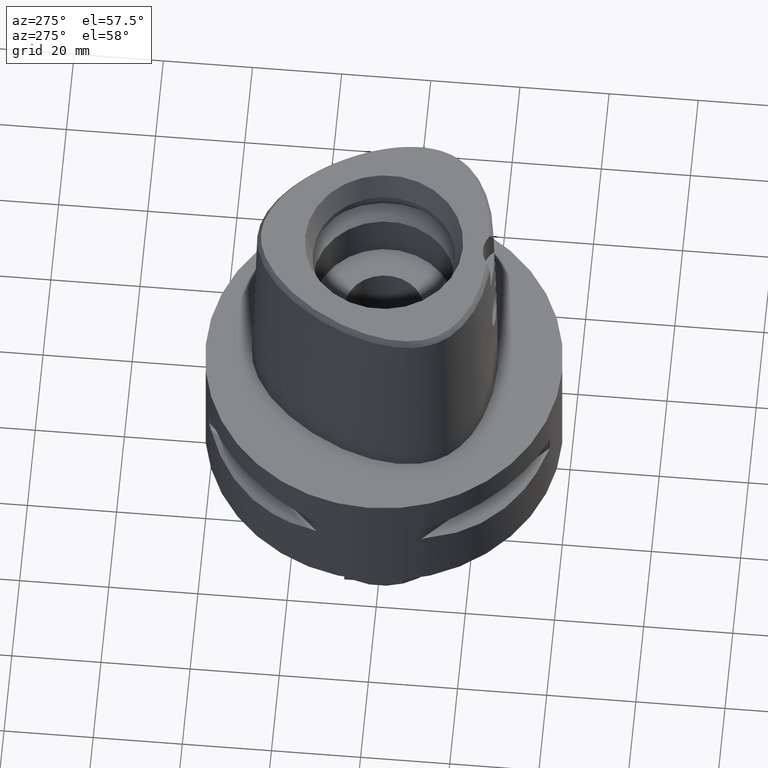
[diagram: clean part render]
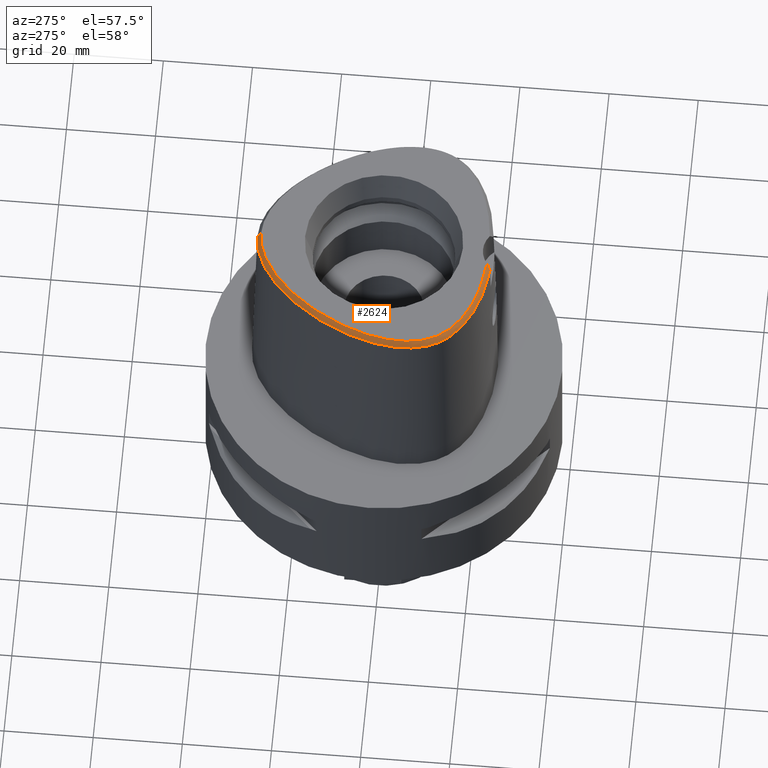
[diagram: same view with one face highlighted and labeled with its STEP entity id]
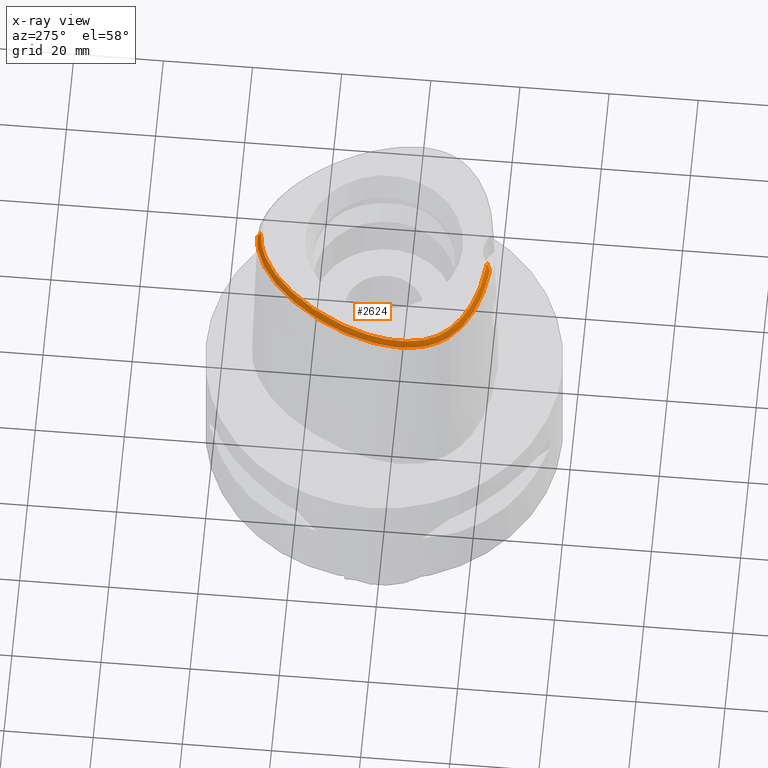
[diagram: x-ray of the same camera — body ghosted, the highlighted face saturated]
A machine part, auxiliary view. The second image highlights one B-rep face of the part: STEP entity #2624.
The next image is the same camera in x-ray: the body ghosted, the highlighted face saturated — about 0% of this face is hidden behind the body in this view.
In plain terms, the highlighted face is a freeform B-spline surface patch.
Its self-contained STEP definition (entity closure, byte-faithful):
#26=CARTESIAN_POINT('',(-3.652529789307E0,-2.343985019792E1,4.8E1));
#27=CARTESIAN_POINT('',(-4.683033247764E0,-2.335834910207E1,4.8E1));
#28=CARTESIAN_POINT('',(-6.614114338805E0,-2.313448817038E1,4.8E1));
#29=CARTESIAN_POINT('',(-9.091589543181E0,-2.268593643629E1,4.8E1));
#30=CARTESIAN_POINT('',(-1.125800466939E1,-2.215770641310E1,4.8E1));
#31=CARTESIAN_POINT('',(-1.318638232014E1,-2.156413028968E1,4.8E1));
#32=CARTESIAN_POINT('',(-1.494119385979E1,-2.090533890742E1,4.8E1));
#33=CARTESIAN_POINT('',(-1.655328899141E1,-2.017968159277E1,4.8E1));
#34=CARTESIAN_POINT('',(-1.804034606676E1,-1.938437686365E1,4.8E1));
#35=CARTESIAN_POINT('',(-1.942354923526E1,-1.850638182548E1,4.8E1));
#36=CARTESIAN_POINT('',(-2.069569385226E1,-1.754133399985E1,4.8E1));
#37=CARTESIAN_POINT('',(-2.181162828129E1,-1.651970286822E1,4.8E1));
#38=CARTESIAN_POINT('',(-2.274427705482E1,-1.548278597447E1,4.8E1));
#39=CARTESIAN_POINT('',(-2.351161564888E1,-1.443992534916E1,4.8E1));
#40=CARTESIAN_POINT('',(-2.414574132173E1,-1.336730647601E1,4.8E1));
#41=CARTESIAN_POINT('',(-2.468154195740E1,-1.220772273755E1,4.8E1));
#42=CARTESIAN_POINT('',(-2.513141684958E1,-1.091440090856E1,4.8E1));
#43=CARTESIAN_POINT('',(-2.548239619470E1,-9.464978865071E0,4.8E1));
#44=CARTESIAN_POINT('',(-2.571001381273E1,-7.885560983795E0,4.8E1));
#45=CARTESIAN_POINT('',(-2.580365620828E1,-6.265883000827E0,4.8E1));
#46=CARTESIAN_POINT('',(-2.577352572027E1,-4.587363113512E0,4.8E1));
#47=CARTESIAN_POINT('',(-2.562068738209E1,-2.845374925699E0,4.8E1));
#48=CARTESIAN_POINT('',(-2.534037793943E1,-1.014302064018E0,4.8E1));
#49=CARTESIAN_POINT('',(-2.491899643614E1,9.312019192237E-1,4.8E1));
#50=CARTESIAN_POINT('',(-2.433405341601E1,3.023401649168E0,4.8E1));
#51=CARTESIAN_POINT('',(-2.353422668467E1,5.340762643813E0,4.8E1));
#52=CARTESIAN_POINT('',(-2.245025422384E1,7.943598158671E0,4.8E1));
#53=CARTESIAN_POINT('',(-2.098937664308E1,1.087122875726E1,4.8E1));
#54=CARTESIAN_POINT('',(-1.922052563968E1,1.383551449549E1,4.8E1));
#55=CARTESIAN_POINT('',(-1.743328922660E1,1.638549563944E1,4.8E1));
#56=CARTESIAN_POINT('',(-1.574555524125E1,1.848443047011E1,4.8E1));
#57=CARTESIAN_POINT('',(-1.415912666468E1,2.022430005120E1,4.8E1));
#58=CARTESIAN_POINT('',(-1.266783654778E1,2.167643268687E1,4.8E1));
#59=CARTESIAN_POINT('',(-1.121509082849E1,2.293240612080E1,4.8E1));
#60=CARTESIAN_POINT('',(-9.776350696685E0,2.402712412905E1,4.8E1));
#61=CARTESIAN_POINT('',(-8.343576951507E0,2.497430947640E1,4.8E1));
#62=CARTESIAN_POINT('',(-6.901339016791E0,2.578557359625E1,4.8E1));
#63=CARTESIAN_POINT('',(-5.435659652745E0,2.646295592857E1,4.8E1));
#64=CARTESIAN_POINT('',(-3.973367182154E0,2.698663007164E1,4.8E1));
#65=CARTESIAN_POINT('',(-2.573835271100E0,2.734109602992E1,4.8E1));
#66=CARTESIAN_POINT('',(-1.262923985492E0,2.754019343629E1,4.8E1));
#67=CARTESIAN_POINT('',(-4.148229384912E-1,2.758331912251E1,4.8E1));
#68=CARTESIAN_POINT('',(-2.553408000972E-11,2.758331912251E1,4.8E1));
#193=CARTESIAN_POINT('',(-3.652529789307E0,-2.343985019792E1,4.8E1));
#194=CARTESIAN_POINT('',(-3.751127124787E0,-2.351550531803E1,4.785150214976E1));
#195=CARTESIAN_POINT('',(-3.943346640380E0,-2.367275217380E1,4.754362455543E1));
#196=CARTESIAN_POINT('',(-4.215731333788E0,-2.392519674126E1,4.705213811447E1));
#197=CARTESIAN_POINT('',(-4.388426624360E0,-2.410640623976E1,4.670142492843E1));
#198=CARTESIAN_POINT('',(-4.472216406693E0,-2.420008985674E1,4.652070903171E1));
#203=CARTESIAN_POINT('',(-4.472216406693E0,-2.420008985674E1,4.652070903171E1));
#204=CARTESIAN_POINT('',(-5.475752624121E0,-2.410402551778E1,4.652067972026E1));
#205=CARTESIAN_POINT('',(-7.367945853152E0,-2.385512745882E1,4.652073740084E1));
#206=CARTESIAN_POINT('',(-9.801189647627E0,-2.337841582408E1,4.652070906855E1));
#207=CARTESIAN_POINT('',(-1.194716168123E1,-2.282424239007E1,4.652071623864E1));
#208=CARTESIAN_POINT('',(-1.387976141996E1,-2.220055676247E1,4.652071729952E1));
#209=CARTESIAN_POINT('',(-1.565226031522E1,-2.150597340248E1,4.652072068809E1));
#210=CARTESIAN_POINT('',(-1.728428195586E1,-2.074122314062E1,4.652071574921E1));
#211=CARTESIAN_POINT('',(-1.880172184312E1,-1.989698688031E1,4.652072148063E1));
#212=CARTESIAN_POINT('',(-2.021929755440E1,-1.896014195435E1,4.652071545507E1));
#213=CARTESIAN_POINT('',(-2.152397752612E1,-1.792573388223E1,4.652072136650E1));
#214=CARTESIAN_POINT('',(-2.263733028488E1,-1.685882936475E1,4.652072203367E1));
#215=CARTESIAN_POINT('',(-2.356343081817E1,-1.578520183949E1,4.652071775445E1));
#216=CARTESIAN_POINT('',(-2.433393768759E1,-1.469583444160E1,4.652070707295E1));
#217=CARTESIAN_POINT('',(-2.497650805901E1,-1.356508662274E1,4.652075653086E1));
#218=CARTESIAN_POINT('',(-2.552310937760E1,-1.233451892648E1,4.652071412741E1));
#219=CARTESIAN_POINT('',(-2.597570467057E1,-1.097873426093E1,4.652072032477E1));
#220=CARTESIAN_POINT('',(-2.632817788575E1,-9.455464052275E0,4.652071394859E1));
#221=CARTESIAN_POINT('',(-2.655169373002E1,-7.799223011323E0,4.652072586554E1));
#222=CARTESIAN_POINT('',(-2.663580487711E1,-6.103626089650E0,4.652071799712E1));
#223=CARTESIAN_POINT('',(-2.659117638984E1,-4.359101815483E0,4.652072397153E1));
#224=CARTESIAN_POINT('',(-2.642035020664E1,-2.554853244511E0,4.652071679554E1));
#225=CARTESIAN_POINT('',(-2.611783448654E1,-6.621123540599E-1,
4.652071502558E1));
#226=CARTESIAN_POINT('',(-2.567159640472E1,1.339191969406E0,4.652072034215E1));
#227=CARTESIAN_POINT('',(-2.505282298067E1,3.501888445338E0,4.652070620436E1));
#228=CARTESIAN_POINT('',(-2.421399897532E1,5.884281890609E0,4.652073185797E1));
#229=CARTESIAN_POINT('',(-2.307920660279E1,8.561303526414E0,4.652070231062E1));
#230=CARTESIAN_POINT('',(-2.156622462677E1,1.154143964738E1,4.652072162713E1));
#231=CARTESIAN_POINT('',(-1.977625183469E1,1.450027225463E1,4.652071280298E1));
#232=CARTESIAN_POINT('',(-1.796066789788E1,1.706259855549E1,4.652071568772E1));
#233=CARTESIAN_POINT('',(-1.625963168374E1,1.915753997069E1,4.652071455924E1));
#234=CARTESIAN_POINT('',(-1.464961598072E1,2.090929856332E1,4.652072237952E1));
#235=CARTESIAN_POINT('',(-1.312832449257E1,2.237879569063E1,4.652070897655E1));
#236=CARTESIAN_POINT('',(-1.164421437989E1,2.365180301611E1,4.652072149738E1));
#237=CARTESIAN_POINT('',(-1.016014052399E1,2.477174561788E1,4.652071087194E1));
#238=CARTESIAN_POINT('',(-8.668650921982E0,2.574794211161E1,4.652072009907E1));
#239=CARTESIAN_POINT('',(-7.154805934627E0,2.658773021121E1,4.652071609329E1));
#240=CARTESIAN_POINT('',(-5.623834718003E0,2.728211588265E1,4.652071764549E1));
#241=CARTESIAN_POINT('',(-4.101690302802E0,2.781388498815E1,4.652071662448E1));
#242=CARTESIAN_POINT('',(-2.664890536414E0,2.816842282447E1,4.652072220894E1));
#243=CARTESIAN_POINT('',(-1.297566230247E0,2.836965316279E1,4.652066191702E1));
#244=CARTESIAN_POINT('',(-4.331059913539E-1,2.841206021535E1,4.652071719450E1));
#245=CARTESIAN_POINT('',(-1.160764204055E-11,2.841206021535E1,
4.652071719451E1));
#250=DIRECTION('',(-8.213237303675E-12,-4.887572309465E-1,8.724198353989E-1));
#251=VECTOR('',#250,1.695608863382E0);
#252=CARTESIAN_POINT('',(-1.160764204055E-11,2.841206021535E1,
4.652071719451E1));
#253=LINE('',#252,#251);
#257=CARTESIAN_POINT('',(-4.472216406693E0,-2.420008985674E1,4.652070903171E1));
#1801=CARTESIAN_POINT('',(-3.652529789305E0,-2.343985019792E1,4.8E1));
#1803=VERTEX_POINT('',#1801);
#1804=VERTEX_POINT('',#68);
#1813=VERTEX_POINT('',#257);
#1814=CARTESIAN_POINT('',(-1.160764204055E-11,2.841206021535E1,
4.652071719451E1));
#1815=VERTEX_POINT('',#1814);
#2340=CARTESIAN_POINT('',(7.473190069758E-1,2.746525488772E1,4.817240918771E1));
#2341=CARTESIAN_POINT('',(7.676450278547E-1,2.780527450520E1,4.756436492219E1));
#2342=CARTESIAN_POINT('',(7.879710487335E-1,2.814529412269E1,4.695632065666E1));
#2343=CARTESIAN_POINT('',(8.082970696123E-1,2.848531374018E1,4.634827639113E1));
#2344=CARTESIAN_POINT('',(4.908051297798E-1,2.747945908280E1,4.817240911813E1));
#2345=CARTESIAN_POINT('',(5.044329278526E-1,2.781989772768E1,4.756436509801E1));
#2346=CARTESIAN_POINT('',(5.180607259255E-1,2.816033637256E1,4.695632107789E1));
#2347=CARTESIAN_POINT('',(5.316885239983E-1,2.850077501743E1,4.634827705777E1));
#2348=CARTESIAN_POINT('',(1.152888996818E-2,2.749358909995E1,4.817240907493E1));
#2349=CARTESIAN_POINT('',(1.193707928387E-2,2.783442966862E1,4.756436520717E1));
#2350=CARTESIAN_POINT('',(1.234526859957E-2,2.817527023728E1,4.695632133941E1));
#2351=CARTESIAN_POINT('',(1.275345791526E-2,2.851611080594E1,4.634827747165E1));
#2352=CARTESIAN_POINT('',(-6.866791866972E-1,2.747378936584E1,
4.817240913547E1));
#2353=CARTESIAN_POINT('',(-7.060352515749E-1,2.781406673744E1,
4.756436505421E1));
#2354=CARTESIAN_POINT('',(-7.253913164526E-1,2.815434410904E1,
4.695632097295E1));
#2355=CARTESIAN_POINT('',(-7.447473813302E-1,2.849462148064E1,
4.634827689169E1));
#2356=CARTESIAN_POINT('',(-1.395613058884E0,2.741385460759E1,4.817240918698E1));
#2357=CARTESIAN_POINT('',(-1.434056008380E0,2.775250267381E1,4.756436492407E1));
#2358=CARTESIAN_POINT('',(-1.472498957877E0,2.809115074004E1,4.695632066116E1));
#2359=CARTESIAN_POINT('',(-1.510941907374E0,2.842979880626E1,4.634827639826E1));
#2360=CARTESIAN_POINT('',(-2.122928208402E0,2.731101067046E1,4.817240916023E1));
#2361=CARTESIAN_POINT('',(-2.180152778348E0,2.764699157965E1,4.756436499165E1));
#2362=CARTESIAN_POINT('',(-2.237377348294E0,2.798297248884E1,4.695632082307E1));
#2363=CARTESIAN_POINT('',(-2.294601918240E0,2.831895339802E1,4.634827665449E1));
#2364=CARTESIAN_POINT('',(-2.874564108389E0,2.716209021029E1,4.817240907195E1));
#2365=CARTESIAN_POINT('',(-2.950147936160E0,2.749441764515E1,4.756436521470E1));
#2366=CARTESIAN_POINT('',(-3.025731763931E0,2.782674508002E1,4.695632135745E1));
#2367=CARTESIAN_POINT('',(-3.101315591702E0,2.815907251488E1,4.634827750019E1));
#2368=CARTESIAN_POINT('',(-3.652424616141E0,2.696337415503E1,4.817240903742E1));
#2369=CARTESIAN_POINT('',(-3.745880107009E0,2.729111964603E1,4.756436530193E1));
#2370=CARTESIAN_POINT('',(-3.839335597876E0,2.761886513703E1,4.695632156643E1));
#2371=CARTESIAN_POINT('',(-3.932791088743E0,2.794661062803E1,4.634827783094E1));
#2372=CARTESIAN_POINT('',(-4.458543156919E0,2.671065993668E1,4.817240906432E1));
#2373=CARTESIAN_POINT('',(-4.569321562539E0,2.703295720620E1,4.756436523400E1));
#2374=CARTESIAN_POINT('',(-4.680099968159E0,2.735525447571E1,4.695632140367E1));
#2375=CARTESIAN_POINT('',(-4.790878373778E0,2.767755174523E1,4.634827757335E1));
#2376=CARTESIAN_POINT('',(-5.294515171174E0,2.639924823672E1,4.817240911334E1));
#2377=CARTESIAN_POINT('',(-5.422015442400E0,2.671529783872E1,4.756436511011E1));
#2378=CARTESIAN_POINT('',(-5.549515713626E0,2.703134744073E1,4.695632110689E1));
#2379=CARTESIAN_POINT('',(-5.677015984851E0,2.734739704273E1,4.634827710366E1));
#2380=CARTESIAN_POINT('',(-6.162808743732E0,2.602343706319E1,4.817240906200E1));
#2381=CARTESIAN_POINT('',(-6.306388895339E0,2.633250735720E1,4.756436523985E1));
#2382=CARTESIAN_POINT('',(-6.449969046946E0,2.664157765122E1,4.695632141771E1));
#2383=CARTESIAN_POINT('',(-6.593549198553E0,2.695064794523E1,4.634827759556E1));
#2384=CARTESIAN_POINT('',(-7.065790828422E0,2.557675141726E1,4.817240903419E1));
#2385=CARTESIAN_POINT('',(-7.224759037616E0,2.587818925924E1,4.756436531013E1));
#2386=CARTESIAN_POINT('',(-7.383727246809E0,2.617962710121E1,4.695632158608E1));
#2387=CARTESIAN_POINT('',(-7.542695456003E0,2.648106494318E1,4.634827786202E1));
#2388=CARTESIAN_POINT('',(-8.003025073688E0,2.505337221342E1,4.817240909791E1));
#2389=CARTESIAN_POINT('',(-8.176683238481E0,2.534658679082E1,4.756436514911E1));
#2390=CARTESIAN_POINT('',(-8.350341403275E0,2.563980136823E1,4.695632120032E1));
#2391=CARTESIAN_POINT('',(-8.523999568069E0,2.593301594564E1,4.634827725153E1));
#2392=CARTESIAN_POINT('',(-8.974707815092E0,2.444660318044E1,4.817240910345E1));
#2393=CARTESIAN_POINT('',(-9.162351526918E0,2.473106389693E1,4.756436513511E1));
#2394=CARTESIAN_POINT('',(-9.349995238745E0,2.501552461342E1,4.695632116677E1));
#2395=CARTESIAN_POINT('',(-9.537638950571E0,2.529998532992E1,4.634827719844E1));
#2396=CARTESIAN_POINT('',(-9.980840291819E0,2.374919054956E1,4.817240912719E1));
#2397=CARTESIAN_POINT('',(-1.018173989533E1,2.402444275969E1,4.756436507515E1));
#2398=CARTESIAN_POINT('',(-1.038263949885E1,2.429969496983E1,4.695632102311E1));
#2399=CARTESIAN_POINT('',(-1.058353910236E1,2.457494717997E1,4.634827697106E1));
#2400=CARTESIAN_POINT('',(-1.101764171475E1,2.295601922949E1,4.817240912727E1));
#2401=CARTESIAN_POINT('',(-1.123110023655E1,2.322164398294E1,4.756436507492E1));
#2402=CARTESIAN_POINT('',(-1.144455875835E1,2.348726873638E1,4.695632102258E1));
#2403=CARTESIAN_POINT('',(-1.165801728016E1,2.375289348982E1,4.634827697023E1));
#2404=CARTESIAN_POINT('',(-1.208329134379E1,2.206021600083E1,4.817240886129E1));
#2405=CARTESIAN_POINT('',(-1.230859747342E1,2.231586179077E1,4.756436574699E1));
#2406=CARTESIAN_POINT('',(-1.253390360306E1,2.257150758070E1,4.695632263268E1));
#2407=CARTESIAN_POINT('',(-1.275920973270E1,2.282715337063E1,4.634827951837E1));
#2408=CARTESIAN_POINT('',(-1.317477160818E1,2.105544189527E1,4.817240867986E1));
#2409=CARTESIAN_POINT('',(-1.341123628513E1,2.130079695202E1,4.756436620541E1));
#2410=CARTESIAN_POINT('',(-1.364770096207E1,2.154615200876E1,4.695632373097E1));
#2411=CARTESIAN_POINT('',(-1.388416563901E1,2.179150706551E1,4.634828125653E1));
#2412=CARTESIAN_POINT('',(-1.428354723582E1,1.994027353549E1,4.817240873358E1));
#2413=CARTESIAN_POINT('',(-1.453050756652E1,2.017505540684E1,4.756436606966E1));
#2414=CARTESIAN_POINT('',(-1.477746789722E1,2.040983727818E1,4.695632340573E1));
#2415=CARTESIAN_POINT('',(-1.502442822792E1,2.064461914953E1,4.634828074180E1));
#2416=CARTESIAN_POINT('',(-1.539964044586E1,1.871573936488E1,4.817240901531E1));
#2417=CARTESIAN_POINT('',(-1.565645809184E1,1.893969143548E1,4.756436535781E1));
#2418=CARTESIAN_POINT('',(-1.591327573781E1,1.916364350609E1,4.695632170031E1));
#2419=CARTESIAN_POINT('',(-1.617009338379E1,1.938759557669E1,4.634827804281E1));
#2420=CARTESIAN_POINT('',(-1.651175767627E1,1.738555098998E1,4.817240916243E1));
#2421=CARTESIAN_POINT('',(-1.677783857901E1,1.759840986617E1,4.756436498608E1));
#2422=CARTESIAN_POINT('',(-1.704391948174E1,1.781126874237E1,4.695632080972E1));
#2423=CARTESIAN_POINT('',(-1.731000038447E1,1.802412761856E1,4.634827663337E1));
#2424=CARTESIAN_POINT('',(-1.761019944128E1,1.595301999999E1,4.817240905674E1));
#2425=CARTESIAN_POINT('',(-1.788494445612E1,1.615456745580E1,4.756436525314E1));
#2426=CARTESIAN_POINT('',(-1.815968947096E1,1.635611491162E1,4.695632144954E1));
#2427=CARTESIAN_POINT('',(-1.843443448580E1,1.655766236743E1,4.634827764594E1));
#2428=CARTESIAN_POINT('',(-1.868000719685E1,1.443025246649E1,4.817240902328E1));
#2429=CARTESIAN_POINT('',(-1.896284809468E1,1.462026762593E1,4.756436533769E1));
#2430=CARTESIAN_POINT('',(-1.924568899251E1,1.481028278536E1,4.695632165209E1));
#2431=CARTESIAN_POINT('',(-1.952852989034E1,1.500029794480E1,4.634827796649E1));
#2432=CARTESIAN_POINT('',(-1.970212896821E1,1.283974306315E1,4.817240910390E1));
#2433=CARTESIAN_POINT('',(-1.999249769480E1,1.301803871862E1,4.756436513397E1));
#2434=CARTESIAN_POINT('',(-2.028286642139E1,1.319633437410E1,4.695632116404E1));
#2435=CARTESIAN_POINT('',(-2.057323514798E1,1.337463002958E1,4.634827719410E1));
#2436=CARTESIAN_POINT('',(-2.066400289219E1,1.119952899397E1,4.817240909733E1));
#2437=CARTESIAN_POINT('',(-2.096136616577E1,1.136589653997E1,4.756436515058E1));
#2438=CARTESIAN_POINT('',(-2.125872943936E1,1.153226408598E1,4.695632120383E1));
#2439=CARTESIAN_POINT('',(-2.155609271295E1,1.169863163199E1,4.634827725708E1));
#2440=CARTESIAN_POINT('',(-2.155573093163E1,9.526426891527E0,4.817240889982E1));
#2441=CARTESIAN_POINT('',(-2.185962503518E1,9.680545538592E0,4.756436564962E1));
#2442=CARTESIAN_POINT('',(-2.216351913873E1,9.834664185657E0,4.695632239941E1));
#2443=CARTESIAN_POINT('',(-2.246741324229E1,9.988782832721E0,4.634827914921E1));
#2444=CARTESIAN_POINT('',(-2.236876091427E1,7.837356638052E0,4.817240885070E1));
#2445=CARTESIAN_POINT('',(-2.267874598621E1,7.978830988168E0,4.756436577373E1));
#2446=CARTESIAN_POINT('',(-2.298873105816E1,8.120305338285E0,4.695632269676E1));
#2447=CARTESIAN_POINT('',(-2.329871613010E1,8.261779688401E0,4.634827961978E1));
#2448=CARTESIAN_POINT('',(-2.309250649536E1,6.158469948974E0,4.817240898864E1));
#2449=CARTESIAN_POINT('',(-2.340811858641E1,6.286907983830E0,4.756436542519E1));
#2450=CARTESIAN_POINT('',(-2.372373067746E1,6.415346018687E0,4.695632186174E1));
#2451=CARTESIAN_POINT('',(-2.403934276852E1,6.543784053543E0,4.634827829828E1));
#2452=CARTESIAN_POINT('',(-2.372037066997E1,4.515360373546E0,4.817240913974E1));
#2453=CARTESIAN_POINT('',(-2.404112109530E1,4.630374530144E0,4.756436504342E1));
#2454=CARTESIAN_POINT('',(-2.436187152064E1,4.745388686742E0,4.695632094709E1));
#2455=CARTESIAN_POINT('',(-2.468262194597E1,4.860402843340E0,4.634827685077E1));
#2456=CARTESIAN_POINT('',(-2.425371376380E1,2.919072709317E0,4.817240910889E1));
#2457=CARTESIAN_POINT('',(-2.457909163339E1,3.020267925740E0,4.756436512138E1));
#2458=CARTESIAN_POINT('',(-2.490446950298E1,3.121463142163E0,4.695632113387E1));
#2459=CARTESIAN_POINT('',(-2.522984737258E1,3.222658358587E0,4.634827714635E1));
#2460=CARTESIAN_POINT('',(-2.469456590148E1,1.381711567582E0,4.817240910467E1));
#2461=CARTESIAN_POINT('',(-2.502403891608E1,1.468667614415E0,4.756436513201E1));
#2462=CARTESIAN_POINT('',(-2.535351193067E1,1.555623661247E0,4.695632115935E1));
#2463=CARTESIAN_POINT('',(-2.568298494527E1,1.642579708079E0,4.634827718668E1));
#2464=CARTESIAN_POINT('',(-2.504704444734E1,-8.843691260912E-2,
4.817240905012E1));
#2465=CARTESIAN_POINT('',(-2.538004794151E1,-1.615086343625E-2,
4.756436526985E1));
#2466=CARTESIAN_POINT('',(-2.571305143567E1,5.613518573662E-2,
4.695632148958E1));
#2467=CARTESIAN_POINT('',(-2.604605492984E1,1.284212349095E-1,
4.634827770931E1));
#2468=CARTESIAN_POINT('',(-2.531661116085E1,-1.485855253425E0,
4.817240909444E1));
#2469=CARTESIAN_POINT('',(-2.565254188400E1,-1.428667573894E0,
4.756436515788E1));
#2470=CARTESIAN_POINT('',(-2.598847260715E1,-1.371479894363E0,
4.695632122131E1));
#2471=CARTESIAN_POINT('',(-2.632440333030E1,-1.314292214832E0,
4.634827728474E1));
#2472=CARTESIAN_POINT('',(-2.550937917977E1,-2.806942051031E0,
4.817240909037E1));
#2473=CARTESIAN_POINT('',(-2.584759437754E1,-2.765303456203E0,
4.756436516817E1));
#2474=CARTESIAN_POINT('',(-2.618580957531E1,-2.723664861376E0,
4.695632124597E1));
#2475=CARTESIAN_POINT('',(-2.652402477307E1,-2.682026266548E0,
4.634827732377E1));
#2476=CARTESIAN_POINT('',(-2.563218596854E1,-4.052434203642E0,
4.817240906825E1));
#2477=CARTESIAN_POINT('',(-2.597199001690E1,-4.026744831997E0,
4.756436522405E1));
#2478=CARTESIAN_POINT('',(-2.631179406527E1,-4.001055460352E0,
4.695632137984E1));
#2479=CARTESIAN_POINT('',(-2.665159811364E1,-3.975366088708E0,
4.634827753564E1));
#2480=CARTESIAN_POINT('',(-2.569154923341E1,-5.221830538500E0,
4.817240911788E1));
#2481=CARTESIAN_POINT('',(-2.603220081357E1,-5.212493795704E0,
4.756436509865E1));
#2482=CARTESIAN_POINT('',(-2.637285239374E1,-5.203157052909E0,
4.695632107943E1));
#2483=CARTESIAN_POINT('',(-2.671350397391E1,-5.193820310113E0,
4.634827706020E1));
#2484=CARTESIAN_POINT('',(-2.569389301533E1,-6.318339567554E0,
4.817240904540E1));
#2485=CARTESIAN_POINT('',(-2.603459789172E1,-6.325733202621E0,
4.756436528178E1));
#2486=CARTESIAN_POINT('',(-2.637530276811E1,-6.333126837687E0,
4.695632151817E1));
#2487=CARTESIAN_POINT('',(-2.671600764450E1,-6.340520472753E0,
4.634827775455E1));
#2488=CARTESIAN_POINT('',(-2.564508960367E1,-7.346311481597E0,
4.817240901945E1));
#2489=CARTESIAN_POINT('',(-2.598500299149E1,-7.370748222128E0,
4.756436534735E1));
#2490=CARTESIAN_POINT('',(-2.632491637931E1,-7.395184962659E0,
4.695632167525E1));
#2491=CARTESIAN_POINT('',(-2.666482976713E1,-7.419621703190E0,
4.634827800315E1));
#2492=CARTESIAN_POINT('',(-2.555054444300E1,-8.307801712289E0,
4.817240909409E1));
#2493=CARTESIAN_POINT('',(-2.588877277699E1,-8.349562100946E0,
4.756436515879E1));
#2494=CARTESIAN_POINT('',(-2.622700111098E1,-8.391322489603E0,
4.695632122349E1));
#2495=CARTESIAN_POINT('',(-2.656522944496E1,-8.433082878260E0,
4.634827728819E1));
#2496=CARTESIAN_POINT('',(-2.541501971549E1,-9.207105612748E0,
4.817240912744E1));
#2497=CARTESIAN_POINT('',(-2.575062073901E1,-9.266419798979E0,
4.756436507450E1));
#2498=CARTESIAN_POINT('',(-2.608622176254E1,-9.325733985209E0,
4.695632102156E1));
#2499=CARTESIAN_POINT('',(-2.642182278606E1,-9.385048171440E0,
4.634827696862E1));
#2500=CARTESIAN_POINT('',(-2.524247586322E1,-1.004930117947E1,
4.817240912148E1));
#2501=CARTESIAN_POINT('',(-2.557446880714E1,-1.012631098243E1,
4.756436508957E1));
#2502=CARTESIAN_POINT('',(-2.590646175105E1,-1.020332078539E1,
4.695632105766E1));
#2503=CARTESIAN_POINT('',(-2.623845469497E1,-1.028033058835E1,
4.634827702574E1));
#2504=CARTESIAN_POINT('',(-2.503633981934E1,-1.083854319934E1,
4.817240911178E1));
#2505=CARTESIAN_POINT('',(-2.536370975545E1,-1.093331867098E1,
4.756436511406E1));
#2506=CARTESIAN_POINT('',(-2.569107969156E1,-1.102809414261E1,
4.695632111634E1));
#2507=CARTESIAN_POINT('',(-2.601844962767E1,-1.112286961425E1,
4.634827711861E1));
#2508=CARTESIAN_POINT('',(-2.479934509880E1,-1.157914567450E1,
4.817240908164E1));
#2509=CARTESIAN_POINT('',(-2.512104754474E1,-1.169168100435E1,
4.756436519021E1));
#2510=CARTESIAN_POINT('',(-2.544274999067E1,-1.180421633420E1,
4.695632129878E1));
#2511=CARTESIAN_POINT('',(-2.576445243660E1,-1.191675166405E1,
4.634827740735E1));
#2512=CARTESIAN_POINT('',(-2.453341696083E1,-1.227571343592E1,
4.817240905583E1));
#2513=CARTESIAN_POINT('',(-2.484839932328E1,-1.240588896782E1,
4.756436525541E1));
#2514=CARTESIAN_POINT('',(-2.516338168572E1,-1.253606449971E1,
4.695632145499E1));
#2515=CARTESIAN_POINT('',(-2.547836404817E1,-1.266624003161E1,
4.634827765457E1));
#2516=CARTESIAN_POINT('',(-2.424030372410E1,-1.293139361828E1,
4.817240916003E1));
#2517=CARTESIAN_POINT('',(-2.454750501417E1,-1.307900516670E1,
4.756436499215E1));
#2518=CARTESIAN_POINT('',(-2.485470630424E1,-1.322661671512E1,
4.695632082428E1));
#2519=CARTESIAN_POINT('',(-2.516190759432E1,-1.337422826354E1,
4.634827665640E1));
#2520=CARTESIAN_POINT('',(-2.392185867578E1,-1.354830945868E1,
4.817240908587E1));
#2521=CARTESIAN_POINT('',(-2.422022448819E1,-1.371306176574E1,
4.756436517954E1));
#2522=CARTESIAN_POINT('',(-2.451859030061E1,-1.387781407281E1,
4.695632127320E1));
#2523=CARTESIAN_POINT('',(-2.481695611302E1,-1.404256637987E1,
4.634827736686E1));
#2524=CARTESIAN_POINT('',(-2.357290877721E1,-1.413963558433E1,
4.817240913387E1));
#2525=CARTESIAN_POINT('',(-2.386135277487E1,-1.432119833172E1,
4.756436505822E1));
#2526=CARTESIAN_POINT('',(-2.414979677253E1,-1.450276107910E1,
4.695632098257E1));
#2527=CARTESIAN_POINT('',(-2.443824077019E1,-1.468432382648E1,
4.634827690692E1));
#2528=CARTESIAN_POINT('',(-2.318264986967E1,-1.472301447308E1,
4.817240912250E1));
#2529=CARTESIAN_POINT('',(-2.346039665613E1,-1.492054300518E1,
4.756436508697E1));
#2530=CARTESIAN_POINT('',(-2.373814344260E1,-1.511807153727E1,
4.695632105145E1));
#2531=CARTESIAN_POINT('',(-2.401589022906E1,-1.531560006936E1,
4.634827701592E1));
#2532=CARTESIAN_POINT('',(-2.274522190100E1,-1.530367562312E1,
4.817240905318E1));
#2533=CARTESIAN_POINT('',(-2.301151638187E1,-1.551638643490E1,
4.756436526214E1));
#2534=CARTESIAN_POINT('',(-2.327781086274E1,-1.572909724668E1,
4.695632147109E1));
#2535=CARTESIAN_POINT('',(-2.354410534361E1,-1.594180805846E1,
4.634827768005E1));
#2536=CARTESIAN_POINT('',(-2.225778770910E1,-1.588111949252E1,
4.817240909730E1));
#2537=CARTESIAN_POINT('',(-2.251194353E1,-1.610818871155E1,4.756436515066E1));
#2538=CARTESIAN_POINT('',(-2.276609935090E1,-1.633525793058E1,
4.695632120403E1));
#2539=CARTESIAN_POINT('',(-2.302025517180E1,-1.656232714961E1,
4.634827725740E1));
#2540=CARTESIAN_POINT('',(-2.171617637483E1,-1.645576290450E1,
4.817240911485E1));
#2541=CARTESIAN_POINT('',(-2.195759920089E1,-1.669631910905E1,
4.756436510630E1));
#2542=CARTESIAN_POINT('',(-2.219902202694E1,-1.693687531360E1,
4.695632109776E1));
#2543=CARTESIAN_POINT('',(-2.244044485299E1,-1.717743151814E1,
4.634827708921E1));
#2544=CARTESIAN_POINT('',(-2.111521620352E1,-1.702812238596E1,
4.817240912429E1));
#2545=CARTESIAN_POINT('',(-2.134340467617E1,-1.728125996207E1,
4.756436508245E1));
#2546=CARTESIAN_POINT('',(-2.157159314882E1,-1.753439753818E1,
4.695632104061E1));
#2547=CARTESIAN_POINT('',(-2.179978162147E1,-1.778753511430E1,
4.634827699877E1));
#2548=CARTESIAN_POINT('',(-2.044994096272E1,-1.759754781340E1,
4.817240912482E1));
#2549=CARTESIAN_POINT('',(-2.066447772482E1,-1.786234758765E1,
4.756436508112E1));
#2550=CARTESIAN_POINT('',(-2.087901448692E1,-1.812714736191E1,
4.695632103743E1));
#2551=CARTESIAN_POINT('',(-2.109355124902E1,-1.839194713616E1,
4.634827699373E1));
#2552=CARTESIAN_POINT('',(-1.971456856596E1,-1.816325998236E1,
4.817240906525E1));
#2553=CARTESIAN_POINT('',(-1.991511262304E1,-1.843880145497E1,
4.756436523165E1));
#2554=CARTESIAN_POINT('',(-2.011565668012E1,-1.871434292758E1,
4.695632139805E1));
#2555=CARTESIAN_POINT('',(-2.031620073720E1,-1.898988440019E1,
4.634827756445E1));
#2556=CARTESIAN_POINT('',(-1.890265232667E1,-1.872409593127E1,
4.817240901402E1));
#2557=CARTESIAN_POINT('',(-1.908896045649E1,-1.900944867851E1,
4.756436536109E1));
#2558=CARTESIAN_POINT('',(-1.927526858631E1,-1.929480142575E1,
4.695632170815E1));
#2559=CARTESIAN_POINT('',(-1.946157671613E1,-1.958015417298E1,
4.634827805521E1));
#2560=CARTESIAN_POINT('',(-1.800884868270E1,-1.927734156052E1,
4.817240907822E1));
#2561=CARTESIAN_POINT('',(-1.818073915883E1,-1.957159809783E1,
4.756436519885E1));
#2562=CARTESIAN_POINT('',(-1.835262963497E1,-1.986585463513E1,
4.695632131947E1));
#2563=CARTESIAN_POINT('',(-1.852452011111E1,-2.016011117244E1,
4.634827744010E1));
#2564=CARTESIAN_POINT('',(-1.702790159250E1,-1.981963347398E1,
4.817240910631E1));
#2565=CARTESIAN_POINT('',(-1.718523655253E1,-2.012191664764E1,
4.756436512788E1));
#2566=CARTESIAN_POINT('',(-1.734257151256E1,-2.042419982130E1,
4.695632114946E1));
#2567=CARTESIAN_POINT('',(-1.749990647259E1,-2.072648299497E1,
4.634827717104E1));
#2568=CARTESIAN_POINT('',(-1.595294295647E1,-2.034788469454E1,
4.817240906148E1));
#2569=CARTESIAN_POINT('',(-1.609568264737E1,-2.065732105686E1,
4.756436524114E1));
#2570=CARTESIAN_POINT('',(-1.623842233828E1,-2.096675741918E1,
4.695632142080E1));
#2571=CARTESIAN_POINT('',(-1.638116202918E1,-2.127619378150E1,
4.634827760046E1));
#2572=CARTESIAN_POINT('',(-1.477964391592E1,-2.085717810182E1,
4.817240910758E1));
#2573=CARTESIAN_POINT('',(-1.490777493214E1,-2.117293843154E1,
4.756436512465E1));
#2574=CARTESIAN_POINT('',(-1.503590594836E1,-2.148869876126E1,
4.695632114172E1));
#2575=CARTESIAN_POINT('',(-1.516403696457E1,-2.180445909097E1,
4.634827715879E1));
#2576=CARTESIAN_POINT('',(-1.350446840205E1,-2.134187494754E1,
4.817240907210E1));
#2577=CARTESIAN_POINT('',(-1.361800839374E1,-2.166316515267E1,
4.756436521430E1));
#2578=CARTESIAN_POINT('',(-1.373154838543E1,-2.198445535779E1,
4.695632135650E1));
#2579=CARTESIAN_POINT('',(-1.384508837711E1,-2.230574556292E1,
4.634827749869E1));
#2580=CARTESIAN_POINT('',(-1.212405886411E1,-2.179609661826E1,
4.817240906869E1));
#2581=CARTESIAN_POINT('',(-1.222308440870E1,-2.212214816189E1,
4.756436522295E1));
#2582=CARTESIAN_POINT('',(-1.232210995328E1,-2.244819970553E1,
4.695632137721E1));
#2583=CARTESIAN_POINT('',(-1.242113549787E1,-2.277425124916E1,
4.634827753147E1));
#2584=CARTESIAN_POINT('',(-1.063976271416E1,-2.221233568010E1,
4.817240910734E1));
#2585=CARTESIAN_POINT('',(-1.072433939644E1,-2.254242614980E1,
4.756436512529E1));
#2586=CARTESIAN_POINT('',(-1.080891607872E1,-2.287251661950E1,
4.695632114324E1));
#2587=CARTESIAN_POINT('',(-1.089349276101E1,-2.320260708920E1,
4.634827716120E1));
#2588=CARTESIAN_POINT('',(-9.054076248586E0,-2.258313509677E1,
4.817240910705E1));
#2589=CARTESIAN_POINT('',(-9.124311099617E0,-2.291656804163E1,
4.756436512600E1));
#2590=CARTESIAN_POINT('',(-9.194545950649E0,-2.325000098649E1,
4.695632114494E1));
#2591=CARTESIAN_POINT('',(-9.264780801680E0,-2.358343393135E1,
4.634827716388E1));
#2592=CARTESIAN_POINT('',(-7.374183254725E0,-2.290056148505E1,
4.817240911364E1));
#2593=CARTESIAN_POINT('',(-7.430161675797E0,-2.323667884007E1,
4.756436510937E1));
#2594=CARTESIAN_POINT('',(-7.486140096869E0,-2.357279619509E1,
4.695632110510E1));
#2595=CARTESIAN_POINT('',(-7.542118517941E0,-2.390891355011E1,
4.634827710084E1));
#2596=CARTESIAN_POINT('',(-5.609585173021E0,-2.315716356076E1,
4.817240895977E1));
#2597=CARTESIAN_POINT('',(-5.651408027057E0,-2.349533143756E1,
4.756436549816E1));
#2598=CARTESIAN_POINT('',(-5.693230881094E0,-2.383349931435E1,
4.695632203655E1));
#2599=CARTESIAN_POINT('',(-5.735053735130E0,-2.417166719114E1,
4.634827857494E1));
#2600=CARTESIAN_POINT('',(-4.345331097050E0,-2.328727735462E1,
4.817240892322E1));
#2601=CARTESIAN_POINT('',(-4.377469902744E0,-2.362643806898E1,
4.756436559052E1));
#2602=CARTESIAN_POINT('',(-4.409608708438E0,-2.396559878333E1,
4.695632225782E1));
#2603=CARTESIAN_POINT('',(-4.441747514132E0,-2.430475949769E1,
4.634827892511E1));
#2604=CARTESIAN_POINT('',(-3.428820535718E0,-2.336099758450E1,
4.817240893744E1));
#2605=CARTESIAN_POINT('',(-3.454054655257E0,-2.370071355989E1,
4.756436555458E1));
#2606=CARTESIAN_POINT('',(-3.479288774795E0,-2.404042953528E1,
4.695632217173E1));
#2607=CARTESIAN_POINT('',(-3.504522894334E0,-2.438014551067E1,
4.634827878888E1));
#2608=CARTESIAN_POINT('',(-3.130899452468E0,-2.338200910723E1,
4.817240894759E1));
#2609=CARTESIAN_POINT('',(-3.153905338217E0,-2.372188211074E1,
4.756436552892E1));
#2610=CARTESIAN_POINT('',(-3.176911223965E0,-2.406175511425E1,
4.695632211025E1));
#2611=CARTESIAN_POINT('',(-3.199917109714E0,-2.440162811776E1,
4.634827869158E1));
#2612=CARTESIAN_POINT('',(-2.872490044823E0,-2.339803343648E1,
4.817240895909E1));
#2613=CARTESIAN_POINT('',(-2.893573531534E0,-2.373802563161E1,
4.756436549987E1));
#2614=CARTESIAN_POINT('',(-2.914657018245E0,-2.407801782675E1,
4.695632204065E1));
#2615=CARTESIAN_POINT('',(-2.935740504957E0,-2.441801002189E1,
4.634827858142E1));
#2616=B_SPLINE_SURFACE_WITH_KNOTS('',3,3,((#2340,#2341,#2342,#2343),(#2344,
#2345,#2346,#2347),(#2348,#2349,#2350,#2351),(#2352,#2353,#2354,#2355),(#2356,
#2357,#2358,#2359),(#2360,#2361,#2362,#2363),(#2364,#2365,#2366,#2367),(#2368,
#2369,#2370,#2371),(#2372,#2373,#2374,#2375),(#2376,#2377,#2378,#2379),(#2380,
#2381,#2382,#2383),(#2384,#2385,#2386,#2387),(#2388,#2389,#2390,#2391),(#2392,
#2393,#2394,#2395),(#2396,#2397,#2398,#2399),(#2400,#2401,#2402,#2403),(#2404,
#2405,#2406,#2407),(#2408,#2409,#2410,#2411),(#2412,#2413,#2414,#2415),(#2416,
#2417,#2418,#2419),(#2420,#2421,#2422,#2423),(#2424,#2425,#2426,#2427),(#2428,
#2429,#2430,#2431),(#2432,#2433,#2434,#2435),(#2436,#2437,#2438,#2439),(#2440,
#2441,#2442,#2443),(#2444,#2445,#2446,#2447),(#2448,#2449,#2450,#2451),(#2452,
#2453,#2454,#2455),(#2456,#2457,#2458,#2459),(#2460,#2461,#2462,#2463),(#2464,
#2465,#2466,#2467),(#2468,#2469,#2470,#2471),(#2472,#2473,#2474,#2475),(#2476,
#2477,#2478,#2479),(#2480,#2481,#2482,#2483),(#2484,#2485,#2486,#2487),(#2488,
#2489,#2490,#2491),(#2492,#2493,#2494,#2495),(#2496,#2497,#2498,#2499),(#2500,
#2501,#2502,#2503),(#2504,#2505,#2506,#2507),(#2508,#2509,#2510,#2511),(#2512,
#2513,#2514,#2515),(#2516,#2517,#2518,#2519),(#2520,#2521,#2522,#2523),(#2524,
#2525,#2526,#2527),(#2528,#2529,#2530,#2531),(#2532,#2533,#2534,#2535),(#2536,
#2537,#2538,#2539),(#2540,#2541,#2542,#2543),(#2544,#2545,#2546,#2547),(#2548,
#2549,#2550,#2551),(#2552,#2553,#2554,#2555),(#2556,#2557,#2558,#2559),(#2560,
#2561,#2562,#2563),(#2564,#2565,#2566,#2567),(#2568,#2569,#2570,#2571),(#2572,
#2573,#2574,#2575),(#2576,#2577,#2578,#2579),(#2580,#2581,#2582,#2583),(#2584,
#2585,#2586,#2587),(#2588,#2589,#2590,#2591),(#2592,#2593,#2594,#2595),(#2596,
#2597,#2598,#2599),(#2600,#2601,#2602,#2603),(#2604,#2605,#2606,#2607),(#2608,
#2609,#2610,#2611),(#2612,#2613,#2614,#2615)),.UNSPECIFIED.,.F.,.F.,.F.,(4,1,1,
1,1,1,1,1,1,1,1,1,1,1,1,1,1,1,1,1,1,1,1,1,1,1,1,1,1,1,1,1,1,1,1,1,1,1,1,1,1,1,1,
1,1,1,1,1,1,1,1,1,1,1,1,1,1,1,1,1,1,1,1,1,1,1,4),(4,4),(-1.680919658064E-2,0.E0,
1.585674268102E-2,3.171348536242E-2,4.757022804383E-2,6.342697072523E-2,
7.928371340664E-2,9.514045608804E-2,1.109971987694E-1,1.268539414508E-1,
1.427106841322E-1,1.585674268137E-1,1.744241694951E-1,1.902809121765E-1,
2.061376548579E-1,2.219943975393E-1,2.378511402207E-1,2.537078829020E-1,
2.695646255835E-1,2.854213682649E-1,3.012781109463E-1,3.171348536277E-1,
3.329915963091E-1,3.488483389905E-1,3.647050816720E-1,3.805618243534E-1,
3.964185670348E-1,4.122753097161E-1,4.281320523975E-1,4.439887950789E-1,
4.598455377603E-1,4.757022804418E-1,4.915590231232E-1,5.074157658046E-1,
5.232725084860E-1,5.391292511674E-1,5.549859938487E-1,5.708427365302E-1,
5.866994792116E-1,6.025562218930E-1,6.184129645744E-1,6.342697072558E-1,
6.501264499372E-1,6.659831926186E-1,6.818399353001E-1,6.976966779815E-1,
7.135534206628E-1,7.294101633442E-1,7.452669060256E-1,7.611236487070E-1,
7.769803913885E-1,7.928371340699E-1,8.086938767513E-1,8.245506194327E-1,
8.404073621141E-1,8.562641047955E-1,8.721208474768E-1,8.879775901583E-1,
9.038343328397E-1,9.196910755211E-1,9.355478182025E-1,9.514045608839E-1,
9.672613035653E-1,9.831180462468E-1,9.989747889282E-1,1.E0,1.006550899226E0),(
-9.283464276840E-2,1.092845749890E0),.UNSPECIFIED.);
#2617=ORIENTED_EDGE('',*,*,#2049,.T.);
#2619=ORIENTED_EDGE('',*,*,#2618,.T.);
#2620=ORIENTED_EDGE('',*,*,#2333,.T.);
#2621=ORIENTED_EDGE('',*,*,#2022,.F.);
#2622=EDGE_LOOP('',(#2617,#2619,#2620,#2621));
#2623=FACE_OUTER_BOUND('',#2622,.F.);
#69=B_SPLINE_CURVE_WITH_KNOTS('',3,(#26,#27,#28,#29,#30,#31,#32,#33,#34,#35,#36,
#37,#38,#39,#40,#41,#42,#43,#44,#45,#46,#47,#48,#49,#50,#51,#52,#53,#54,#55,#56,
#57,#58,#59,#60,#61,#62,#63,#64,#65,#66,#67,#68),.UNSPECIFIED.,.F.,.F.,(4,1,1,1,
1,1,1,1,1,1,1,1,1,1,1,1,1,1,1,1,1,1,1,1,1,1,1,1,1,1,1,1,1,1,1,1,1,1,1,1,4),
(0.E0,2.5E-2,5.E-2,7.5E-2,1.E-1,1.25E-1,1.5E-1,1.75E-1,2.E-1,2.25E-1,2.5E-1,
2.75E-1,3.E-1,3.25E-1,3.5E-1,3.75E-1,4.E-1,4.25E-1,4.5E-1,4.75E-1,5.E-1,5.25E-1,
5.5E-1,5.75E-1,6.E-1,6.25E-1,6.5E-1,6.75E-1,7.E-1,7.25E-1,7.5E-1,7.75E-1,8.E-1,
8.25E-1,8.5E-1,8.75E-1,9.E-1,9.25E-1,9.5E-1,9.75E-1,1.E0),.UNSPECIFIED.);
#199=B_SPLINE_CURVE_WITH_KNOTS('',3,(#193,#194,#195,#196,#197,#198),
.UNSPECIFIED.,.F.,.F.,(4,1,1,4),(0.E0,3.333333333333E-1,6.666666666667E-1,1.E0),
.UNSPECIFIED.);
#246=B_SPLINE_CURVE_WITH_KNOTS('',3,(#203,#204,#205,#206,#207,#208,#209,#210,
#211,#212,#213,#214,#215,#216,#217,#218,#219,#220,#221,#222,#223,#224,#225,#226,
#227,#228,#229,#230,#231,#232,#233,#234,#235,#236,#237,#238,#239,#240,#241,#242,
#243,#244,#245),.UNSPECIFIED.,.F.,.F.,(4,1,1,1,1,1,1,1,1,1,1,1,1,1,1,1,1,1,1,1,
1,1,1,1,1,1,1,1,1,1,1,1,1,1,1,1,1,1,1,1,4),(0.E0,2.5E-2,5.E-2,7.5E-2,1.E-1,
1.25E-1,1.5E-1,1.75E-1,2.E-1,2.25E-1,2.5E-1,2.75E-1,3.E-1,3.25E-1,3.5E-1,
3.75E-1,4.E-1,4.25E-1,4.5E-1,4.75E-1,5.E-1,5.25E-1,5.5E-1,5.75E-1,6.E-1,6.25E-1,
6.5E-1,6.75E-1,7.E-1,7.25E-1,7.5E-1,7.75E-1,8.E-1,8.25E-1,8.5E-1,8.75E-1,9.E-1,
9.25E-1,9.5E-1,9.75E-1,1.E0),.UNSPECIFIED.);
#2022=EDGE_CURVE('',#1803,#1804,#69,.T.);
#2049=EDGE_CURVE('',#1803,#1813,#199,.T.);
#2333=EDGE_CURVE('',#1815,#1804,#253,.T.);
#2618=EDGE_CURVE('',#1813,#1815,#246,.T.);
#2624=ADVANCED_FACE('',(#2623),#2616,.F.);